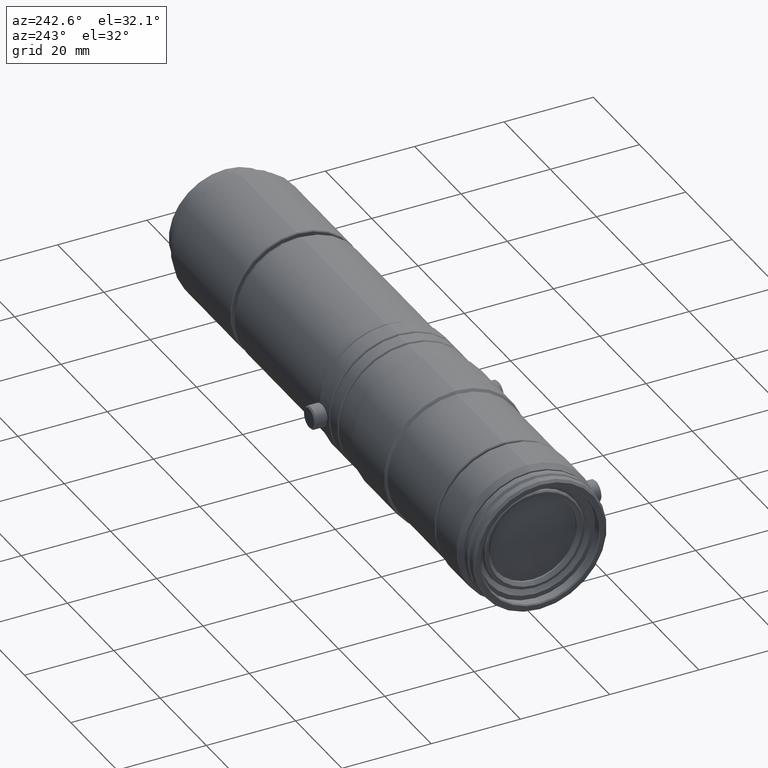
[diagram: clean part render]
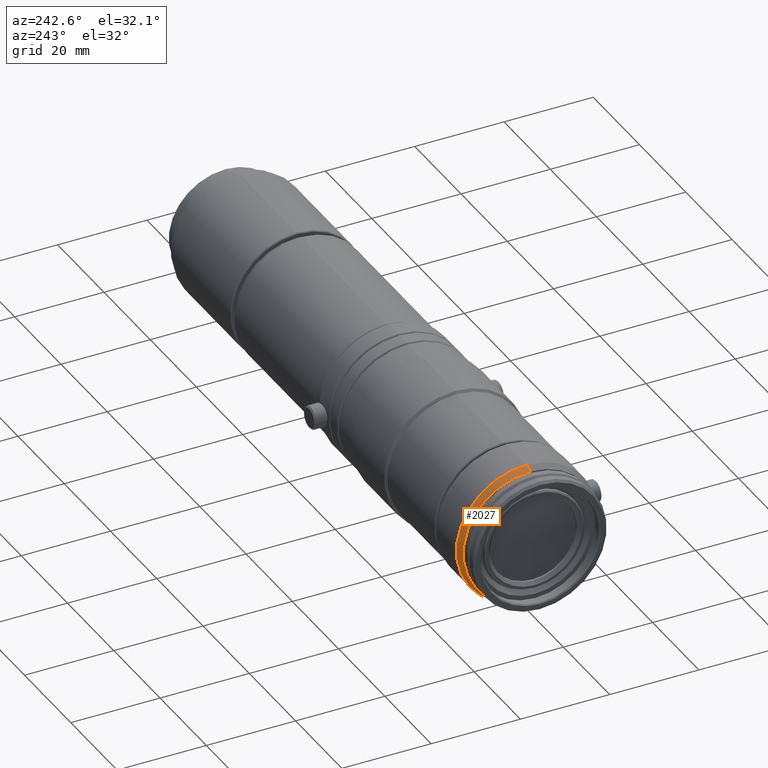
[diagram: same view with one face highlighted and labeled with its STEP entity id]
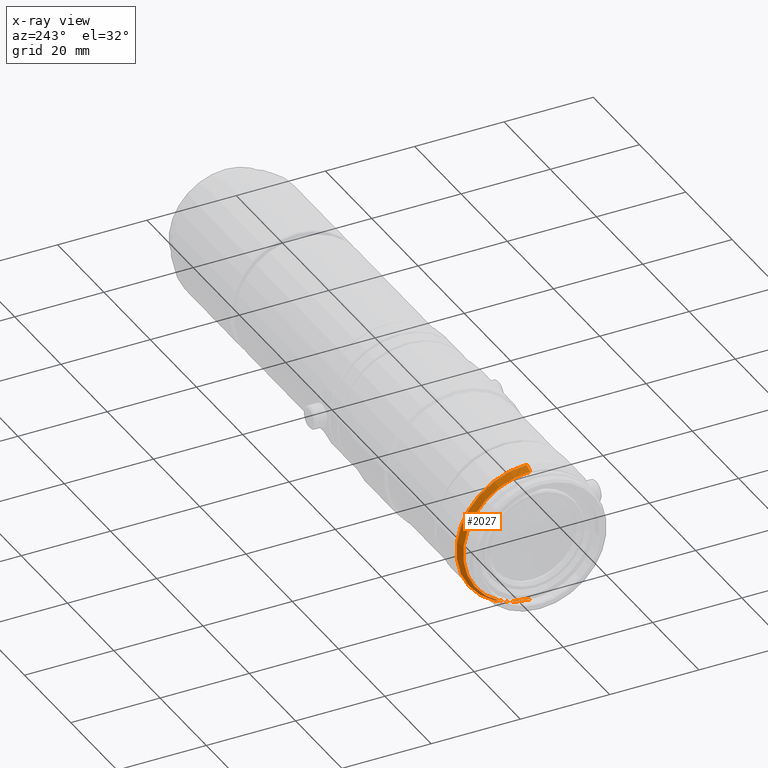
[diagram: x-ray of the same camera — body ghosted, the highlighted face saturated]
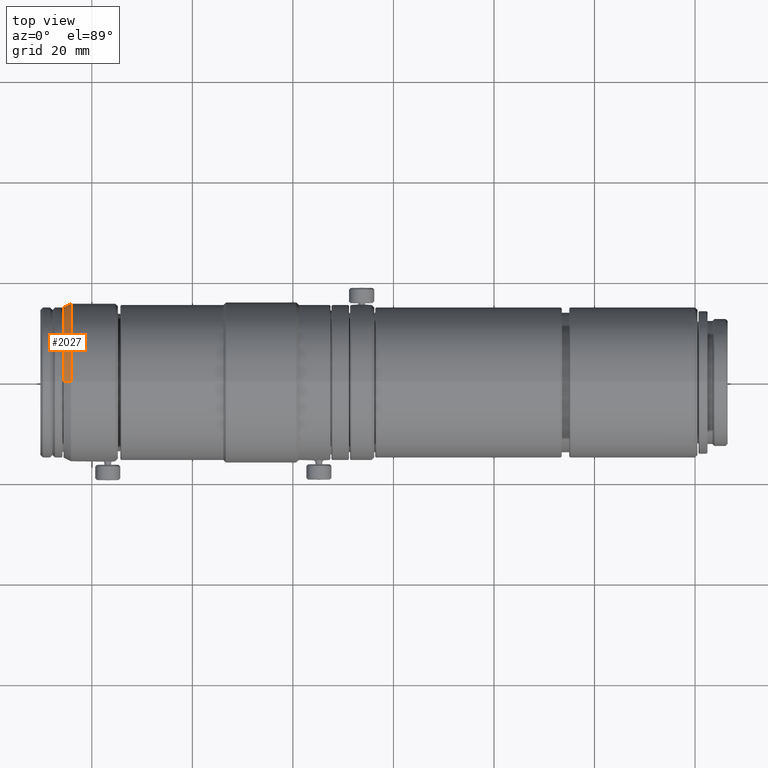
[diagram: same view with one face highlighted and labeled with its STEP entity id]
A machine part, auxiliary view. The second image highlights one B-rep face of the part: STEP entity #2027.
The next image is the same camera in x-ray: the body ghosted, the highlighted face saturated — about 0% of this face is hidden behind the body in this view.
A second angle (top view) of the same face is appended — the face is thin or edge-on in the first view.
In plain terms, the highlighted conical surface has half-angle 26.567 deg.
Its self-contained STEP definition (entity closure, byte-faithful):
#410 = ORIENTED_EDGE ( 'NONE', *, *, #793, .F. ) ;
#723 = VERTEX_POINT ( 'NONE', #3142 ) ;
#793 = EDGE_CURVE ( 'NONE', #723, #2645, #4208, .T. ) ;
#938 = FACE_OUTER_BOUND ( 'NONE', #3802, .T. ) ;
#1016 = ORIENTED_EDGE ( 'NONE', *, *, #2571, .F. ) ;
#1065 = CARTESIAN_POINT ( 'NONE',  ( -144.1259999999998911, -1.734723475976807094E-13, -15.74999999999992362 ) ) ;
#1128 = VECTOR ( 'NONE', #1972, 1000.000000000000000 ) ;
#1150 = VERTEX_POINT ( 'NONE', #2492 ) ;
#1271 = EDGE_CURVE ( 'NONE', #1780, #2645, #1847, .T. ) ;
#1302 = CARTESIAN_POINT ( 'NONE',  ( -144.1259999999998911, -1.715435288890236372E-13, 15.74999999999992362 ) ) ;
#1413 = DIRECTION ( 'NONE',  ( 0.0000000000000000000, 0.0000000000000000000, 1.000000000000000000 ) ) ;
#1450 = DIRECTION ( 'NONE',  ( 0.8944145811832092674, 0.0000000000000000000, -0.4472388142445423709 ) ) ;
#1475 = VECTOR ( 'NONE', #1450, 1000.000000000000000 ) ;
#1696 = CONICAL_SURFACE ( 'NONE', #3440, 15.74999999999992362, 0.4636758046131569944 ) ;
#1753 = CARTESIAN_POINT ( 'NONE',  ( -144.1259999999998911, -1.715435288890236372E-13, -15.74999999999992362 ) ) ;
#1780 = VERTEX_POINT ( 'NONE', #3483 ) ;
#1847 = CIRCLE ( 'NONE', #3347, 15.74999999999992362 ) ;
#1849 = ORIENTED_EDGE ( 'NONE', *, *, #1271, .T. ) ;
#1902 = DIRECTION ( 'NONE',  ( 0.0000000000000000000, 0.0000000000000000000, 1.000000000000000000 ) ) ;
#1972 = DIRECTION ( 'NONE',  ( 0.8944145811832092674, 5.477095823190365097E-17, 0.4472388142445423709 ) ) ;
#2027 = ADVANCED_FACE ( 'NONE', ( #938 ), #1696, .T. ) ;
#2198 = ORIENTED_EDGE ( 'NONE', *, *, #3536, .T. ) ;
#2329 = DIRECTION ( 'NONE',  ( 0.0000000000000000000, 0.0000000000000000000, -1.000000000000000000 ) ) ;
#2492 = CARTESIAN_POINT ( 'NONE',  ( -145.6259999999998911, -1.715894563811935190E-13, 14.99994713248143441 ) ) ;
#2571 = EDGE_CURVE ( 'NONE', #1150, #723, #3817, .T. ) ;
#2645 = VERTEX_POINT ( 'NONE', #1753 ) ;
#2716 = DIRECTION ( 'NONE',  ( 1.000000000000000000, 0.0000000000000000000, 0.0000000000000000000 ) ) ;
#3058 = LINE ( 'NONE', #1302, #1128 ) ;
#3142 = CARTESIAN_POINT ( 'NONE',  ( -145.6259999999998911, -1.734723475976807094E-13, -14.99994713248143441 ) ) ;
#3171 = CARTESIAN_POINT ( 'NONE',  ( -145.6259999999998911, -1.734723475976807094E-13, 0.0000000000000000000 ) ) ;
#3347 = AXIS2_PLACEMENT_3D ( 'NONE', #4380, #3711, #1902 ) ;
#3440 = AXIS2_PLACEMENT_3D ( 'NONE', #4121, #2716, #2329 ) ;
#3483 = CARTESIAN_POINT ( 'NONE',  ( -144.1259999999998911, -1.734723475976807094E-13, 15.74999999999992362 ) ) ;
#3536 = EDGE_CURVE ( 'NONE', #1150, #1780, #3058, .T. ) ;
#3711 = DIRECTION ( 'NONE',  ( -1.000000000000000000, -0.0000000000000000000, -0.0000000000000000000 ) ) ;
#3802 = EDGE_LOOP ( 'NONE', ( #1016, #2198, #1849, #410 ) ) ;
#3817 = CIRCLE ( 'NONE', #4486, 14.99994713248143441 ) ;
#4121 = CARTESIAN_POINT ( 'NONE',  ( -144.1259999999998911, -1.734723475976807094E-13, 0.0000000000000000000 ) ) ;
#4208 = LINE ( 'NONE', #1065, #1475 ) ;
#4380 = CARTESIAN_POINT ( 'NONE',  ( -144.1259999999998911, -1.734723475976807094E-13, 0.0000000000000000000 ) ) ;
#4486 = AXIS2_PLACEMENT_3D ( 'NONE', #3171, #4607, #1413 ) ;
#4607 = DIRECTION ( 'NONE',  ( -1.000000000000000000, -0.0000000000000000000, -0.0000000000000000000 ) ) ;